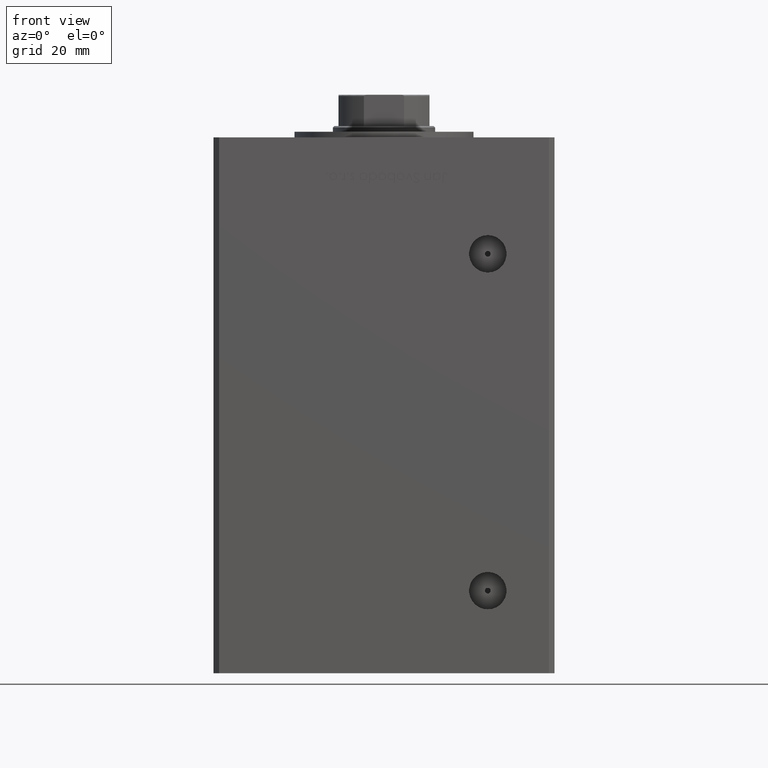
[diagram: clean part render]
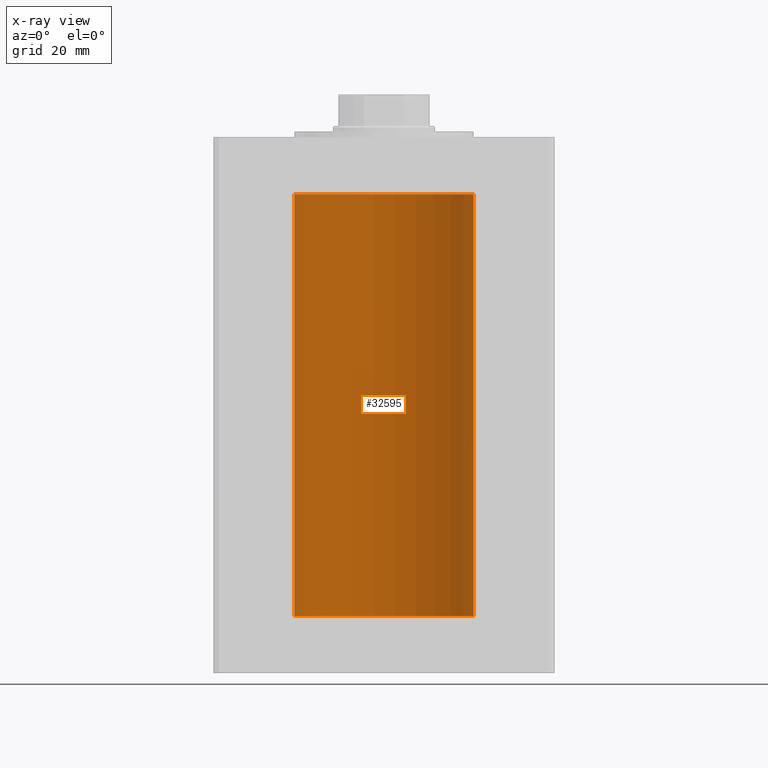
[diagram: x-ray — body ghosted, one internal face saturated and labeled with its STEP entity id]
A machine part, front view, then the same camera in x-ray: the body is ghosted and one INTERNAL B-rep face — a face not visible from any outside direction — is saturated and labeled: STEP entity #32595.
In plain terms, the highlighted cylindrical surface (partial cylindrical patch) has radius 31.5 mm, axis along (-0, -0, -1).
Its self-contained STEP definition (entity closure, byte-faithful):
#2535 = CARTESIAN_POINT ( 'NONE',  ( -31.50000000000000000, 0.000000000000000000, 148.5000000000000000 ) ) ;
#3330 = CYLINDRICAL_SURFACE ( 'NONE', #25571, 31.50000000000000000 ) ;
#3686 = ORIENTED_EDGE ( 'NONE', *, *, #15272, .F. ) ;
#4077 = DIRECTION ( 'NONE',  ( -0.000000000000000000, -0.000000000000000000, -1.000000000000000000 ) ) ;
#6577 = VECTOR ( 'NONE', #36497, 1000.000000000000000 ) ;
#9180 = CARTESIAN_POINT ( 'NONE',  ( -31.50000000000000000, 0.000000000000000000, 0.000000000000000000 ) ) ;
#10979 = DIRECTION ( 'NONE',  ( -0.000000000000000000, -0.000000000000000000, -1.000000000000000000 ) ) ;
#11232 = CARTESIAN_POINT ( 'NONE',  ( 0.000000000000000000, 0.000000000000000000, 148.5000000000000000 ) ) ;
#11474 = CIRCLE ( 'NONE', #19900, 31.50000000000000000 ) ;
#15272 = EDGE_CURVE ( 'NONE', #24167, #49177, #16454, .T. ) ;
#16454 = LINE ( 'NONE', #32272, #6577 ) ;
#19900 = AXIS2_PLACEMENT_3D ( 'NONE', #31286, #39712, #39460 ) ;
#20509 = CARTESIAN_POINT ( 'NONE',  ( -31.50000000000000000, 0.000000000000000000, 148.5000000000000000 ) ) ;
#22470 = AXIS2_PLACEMENT_3D ( 'NONE', #36524, #47857, #35486 ) ;
#22546 = LINE ( 'NONE', #2535, #25899 ) ;
#24167 = VERTEX_POINT ( 'NONE', #47749 ) ;
#25571 = AXIS2_PLACEMENT_3D ( 'NONE', #11232, #10979, #31509 ) ;
#25899 = VECTOR ( 'NONE', #4077, 1000.000000000000000 ) ;
#27395 = ORIENTED_EDGE ( 'NONE', *, *, #46054, .F. ) ;
#30783 = VERTEX_POINT ( 'NONE', #9180 ) ;
#31286 = CARTESIAN_POINT ( 'NONE',  ( 0.000000000000000000, 0.000000000000000000, 0.000000000000000000 ) ) ;
#31509 = DIRECTION ( 'NONE',  ( -1.000000000000000000, 0.000000000000000000, 0.000000000000000000 ) ) ;
#32272 = CARTESIAN_POINT ( 'NONE',  ( 31.50000000000000000, 3.857637417314162689E-15, 148.5000000000000000 ) ) ;
#32595 = ADVANCED_FACE ( 'NONE', ( #34709 ), #3330, .F. ) ;
#34709 = FACE_OUTER_BOUND ( 'NONE', #51248, .T. ) ;
#35486 = DIRECTION ( 'NONE',  ( 1.000000000000000000, 0.000000000000000000, 0.000000000000000000 ) ) ;
#36034 = ORIENTED_EDGE ( 'NONE', *, *, #48065, .T. ) ;
#36497 = DIRECTION ( 'NONE',  ( -0.000000000000000000, -0.000000000000000000, -1.000000000000000000 ) ) ;
#36524 = CARTESIAN_POINT ( 'NONE',  ( 0.000000000000000000, 0.000000000000000000, 148.5000000000000000 ) ) ;
#39460 = DIRECTION ( 'NONE',  ( 1.000000000000000000, 0.000000000000000000, 0.000000000000000000 ) ) ;
#39712 = DIRECTION ( 'NONE',  ( -0.000000000000000000, 0.000000000000000000, 1.000000000000000000 ) ) ;
#41082 = VERTEX_POINT ( 'NONE', #20509 ) ;
#41726 = CARTESIAN_POINT ( 'NONE',  ( 31.50000000000000000, 3.857637417314162689E-15, 0.000000000000000000 ) ) ;
#43541 = ORIENTED_EDGE ( 'NONE', *, *, #49026, .T. ) ;
#46054 = EDGE_CURVE ( 'NONE', #49177, #30783, #11474, .T. ) ;
#47749 = CARTESIAN_POINT ( 'NONE',  ( 31.50000000000000000, 3.857637417314162689E-15, 148.5000000000000000 ) ) ;
#47857 = DIRECTION ( 'NONE',  ( -0.000000000000000000, 0.000000000000000000, 1.000000000000000000 ) ) ;
#48065 = EDGE_CURVE ( 'NONE', #24167, #41082, #51925, .T. ) ;
#49026 = EDGE_CURVE ( 'NONE', #41082, #30783, #22546, .T. ) ;
#49177 = VERTEX_POINT ( 'NONE', #41726 ) ;
#51248 = EDGE_LOOP ( 'NONE', ( #3686, #36034, #43541, #27395 ) ) ;
#51925 = CIRCLE ( 'NONE', #22470, 31.50000000000000000 ) ;